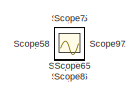
[diagram: root canvas - part 1/2, top left region]
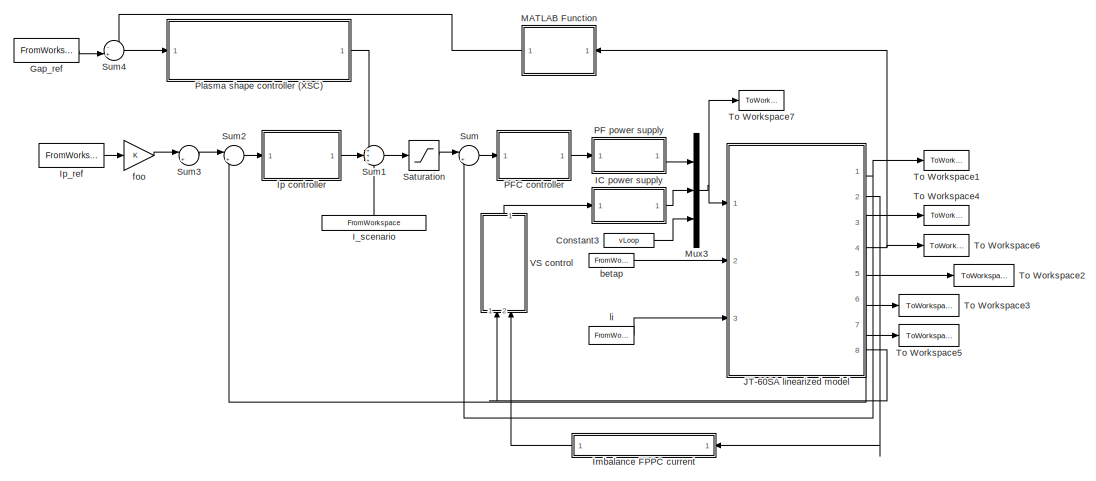
[diagram: root canvas - part 2/2, right side, full height]
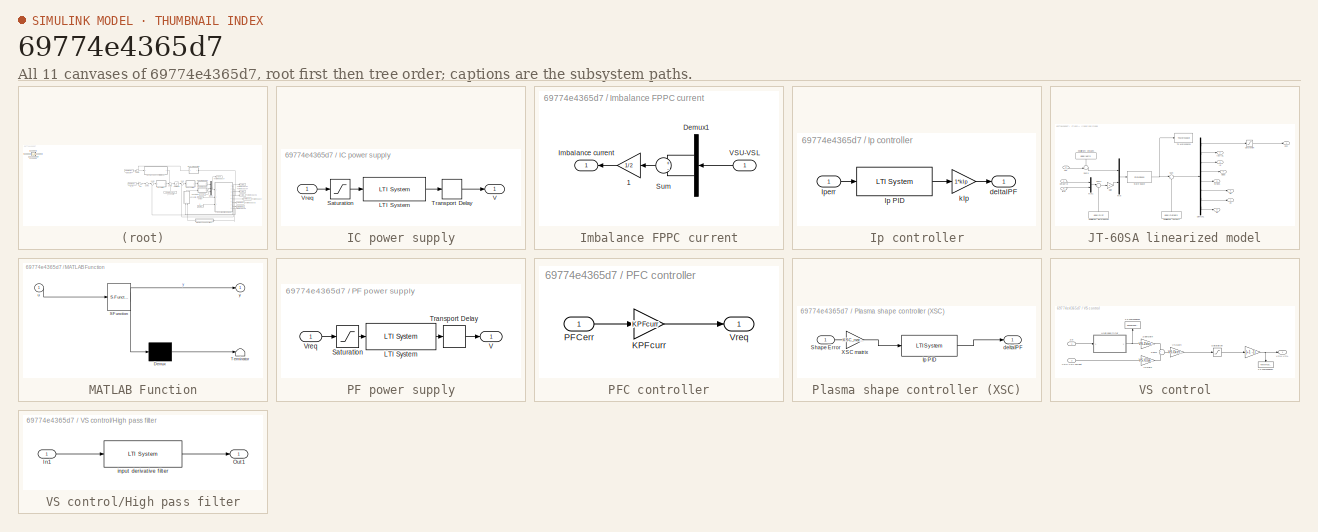
[diagram: thumbnail index - all 11 canvases of the model, root first then tree order]
MODEL slx_69774e4365d7
KIND model
CONFIG AbsTol = auto
CONFIG FixedStep = auto
CONFIG MaxStep = auto
CONFIG MinStep = auto
CONFIG RelTol = 1e-5
CONFIG SampleTimeConstraint = Unconstrained
CONFIG Solver = ode45
CONFIG SolverMode = SingleTasking
CONFIG SolverName = ode45
CONFIG StartTime = startTime-neg_time
CONFIG StopTime = stopTime
BLOCK [Constant] Constant3
  Value = vLoop
BLOCK [FromWorkspace] Gap_ref
  OutputAfterFinalValue = Holding final value
  SampleTime = 0
  VariableName = Gap_ref
  ZeroCross = on
BLOCK [SubSystem] IC power supply
  Ports = [1, 1]
  RequestExecContextInheritance = off
  Variant = off
BLOCK [Reference] IC power supply/LTI System  REF=cstblocks/LTI System
  Ports = [1, 1]
  SourceBlock = cstblocks/LTI System
  SourceType = LTI Block
BLOCK [Saturate] IC power supply/Saturation
  InputPortMap = u0
  LowerLimit = [-1e3 -1e3]
  Ports = [1, 1]
  UpperLimit = [1e3 1e3]
BLOCK [TransportDelay] IC power supply/Transport Delay
  DelayTime = PSdelay
  Ports = [1, 1]
BLOCK [Outport] IC power supply/V
  IconDisplay = Port number
BLOCK [Inport] IC power supply/Vreq
  IconDisplay = Port number
BLOCK [FromWorkspace] I_scenario
  OutputAfterFinalValue = Holding final value
  SampleTime = 0
  VariableName = IPF_scenario
  ZeroCross = on
BLOCK [SubSystem] Imbalance FPPC current
  Ports = [1, 1]
  RequestExecContextInheritance = off
  Variant = off
BLOCK [Gain] Imbalance FPPC current/    1
  Gain = 1/2
  OutDataTypeStr = Inherit: Inherit via internal rule
  ParamDataTypeStr = Inherit: Inherit via internal rule
  SaturateOnIntegerOverflow = off
BLOCK [Demux] Imbalance FPPC current/Demux1
  DisplayOption = bar
  Outputs = 2
  Ports = [1, 2]
BLOCK [Outport] Imbalance FPPC current/Imbalance current
  IconDisplay = Port number
BLOCK [Sum] Imbalance FPPC current/Sum
  IconShape = round
  InputSameDT = off
  Inputs = +|-
  OutDataTypeStr = Inherit: Inherit via internal rule
  Ports = [2, 1]
  SaturateOnIntegerOverflow = off
BLOCK [Inport] Imbalance FPPC current/VSU-VSL
  IconDisplay = Port number
BLOCK [SubSystem] Ip controller
  Ports = [1, 1]
  RequestExecContextInheritance = off
  Variant = off
BLOCK [Reference] Ip controller/Ip PID  REF=cstblocks/LTI System
  Ports = [1, 1]
  SourceBlock = cstblocks/LTI System
  SourceType = LTI Block
BLOCK [Inport] Ip controller/Iperr
  IconDisplay = Port number
BLOCK [Outport] Ip controller/deltaIPF
  IconDisplay = Port number
BLOCK [Gain] Ip controller/kIp
  Gain = 1*kIp
  Multiplication = Matrix(K*u)
  OutDataTypeStr = Inherit: Inherit via internal rule
  ParamDataTypeStr = Inherit: Inherit via internal rule
  SaturateOnIntegerOverflow = off
BLOCK [FromWorkspace] Ip_ref
  OutputAfterFinalValue = Holding final value
  SampleTime = 0
  VariableName = Ip_ref
  ZeroCross = on
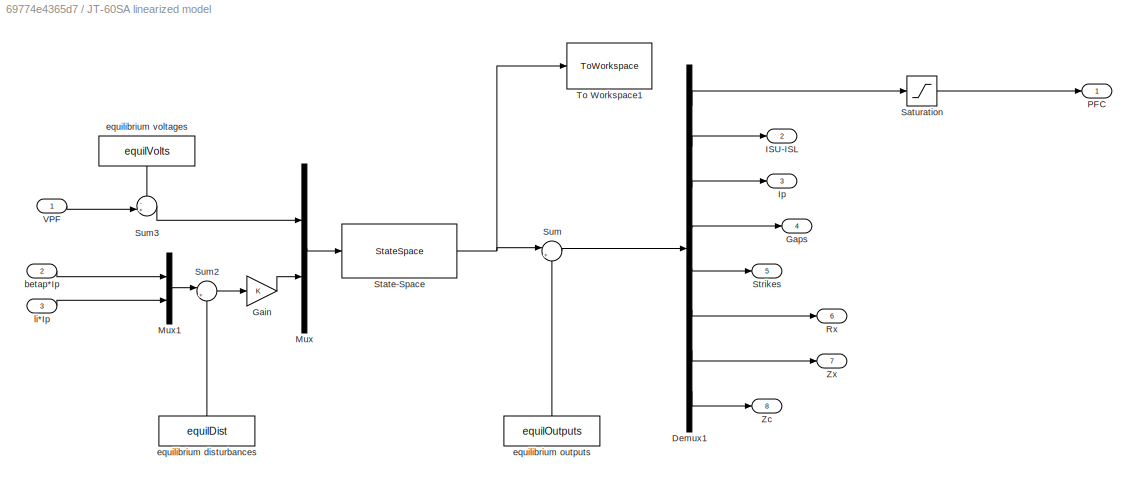
BLOCK [SubSystem] JT-60SA linearized model
  Ports = [3, 8]
  RequestExecContextInheritance = off
  Variant = off
BLOCK [Demux] JT-60SA linearized model/Demux1
  DisplayOption = bar
  Outputs = [10 2 1 nOfGaps nOfStrikes 1 1 1]
  Ports = [1, 8]
BLOCK [Gain] JT-60SA linearized model/Gain
  OutDataTypeStr = Inherit: Inherit via internal rule
  ParamDataTypeStr = Inherit: Inherit via internal rule
  SaturateOnIntegerOverflow = off
BLOCK [Outport] JT-60SA linearized model/Gaps
  IconDisplay = Port number
  Port = 4
BLOCK [Outport] JT-60SA linearized model/ISU-ISL
  IconDisplay = Port number
  Port = 2
BLOCK [Outport] JT-60SA linearized model/Ip
  IconDisplay = Port number
  Port = 3
BLOCK [Mux] JT-60SA linearized model/Mux
  DisplayOption = bar
  Inputs = 2
  Ports = [2, 1]
BLOCK [Mux] JT-60SA linearized model/Mux1
  DisplayOption = bar
  Inputs = 2
  Ports = [2, 1]
BLOCK [Outport] JT-60SA linearized model/PFC
  IconDisplay = Port number
BLOCK [Outport] JT-60SA linearized model/Rx
  IconDisplay = Port number
  Port = 6
BLOCK [Saturate] JT-60SA linearized model/Saturation
  InputPortMap = u0
  LowerLimit = I_sat_lower
  Ports = [1, 1]
  UpperLimit = I_sat_upper
BLOCK [StateSpace] JT-60SA linearized model/State-Space
  A = A_contr
  B = B_contr
  C = C_contr
  D = D_contr
  Ports = [1, 1]
  X0 = xi0
BLOCK [Outport] JT-60SA linearized model/Strikes
  IconDisplay = Port number
  Port = 5
BLOCK [Sum] JT-60SA linearized model/Sum
  IconShape = round
  InputSameDT = off
  Inputs = |++
  OutDataTypeStr = Inherit: Inherit via internal rule
  Ports = [2, 1]
  SaturateOnIntegerOverflow = off
BLOCK [Sum] JT-60SA linearized model/Sum2
  IconShape = round
  InputSameDT = off
  Inputs = |+-
  OutDataTypeStr = Inherit: Inherit via internal rule
  Ports = [2, 1]
  SaturateOnIntegerOverflow = off
BLOCK [Sum] JT-60SA linearized model/Sum3
  IconShape = round
  InputSameDT = off
  Inputs = -+|
  OutDataTypeStr = Inherit: Inherit via internal rule
  Ports = [2, 1]
  SaturateOnIntegerOverflow = off
BLOCK [ToWorkspace] JT-60SA linearized model/To Workspace1
  FixptAsFi = on
  MaxDataPoints = inf
  Ports = [1]
  SampleTime = -1
  Save2DSignal = 3-D array (concatenate along third dimension)
  SaveFormat = Structure With Time
  VariableName = deltaOutputs
BLOCK [Inport] JT-60SA linearized model/VPF
  IconDisplay = Port number
BLOCK [Outport] JT-60SA linearized model/Zc
  IconDisplay = Port number
  Port = 8
BLOCK [Outport] JT-60SA linearized model/Zx
  IconDisplay = Port number
  Port = 7
BLOCK [Inport] JT-60SA linearized model/betap*Ip
  IconDisplay = Port number
  Port = 2
BLOCK [Constant] JT-60SA linearized model/equilibrium disturbances
  Value = equilDist
BLOCK [Constant] JT-60SA linearized model/equilibrium outputs
  Value = equilOutputs
BLOCK [Constant] JT-60SA linearized model/equilibrium voltages
  Value = equilVolts
BLOCK [Inport] JT-60SA linearized model/li*Ip
  IconDisplay = Port number
  Port = 3
BLOCK [SubSystem] MATLAB Function
  ErrorFcn = Stateflow.Translate.translate
  PermitHierarchicalResolution = ExplicitOnly
  Ports = [1, 1]
  RequestExecContextInheritance = off
  SFBlockType = MATLAB Function
  TreatAsAtomicUnit = on
  Variant = off
BLOCK [Demux] MATLAB Function/ Demux 
  Outputs = 1
  Ports = [1, 1]
BLOCK [S-Function] MATLAB Function/ SFunction 
  EnableBusSupport = on
  FunctionName = sf_sfun
  PortCounts = [1 2]
  Ports = [1, 2]
  SFunctionDeploymentMode = off
  Tag = Stateflow S-Function JT_60SA_scheme_nov_2017_RU_2015a 2
BLOCK [Terminator] MATLAB Function/ Terminator 
BLOCK [Inport] MATLAB Function/u
  IconDisplay = Port number
BLOCK [Outport] MATLAB Function/y
  IconDisplay = Port number
BLOCK [Mux] Mux3
  DisplayOption = bar
  Inputs = 3
  Ports = [3, 1]
BLOCK [SubSystem] PF power supply
  Ports = [1, 1]
  RequestExecContextInheritance = off
  Variant = off
BLOCK [Reference] PF power supply/LTI System  REF=cstblocks/LTI System
  Ports = [1, 1]
  SourceBlock = cstblocks/LTI System
  SourceType = LTI Block
BLOCK [Saturate] PF power supply/Saturation
  InputPortMap = u0
  LowerLimit = -[CSsat EFsat]
  Ports = [1, 1]
  UpperLimit = [CSsat EFsat]
BLOCK [TransportDelay] PF power supply/Transport Delay
  DelayTime = PSdelay
  Ports = [1, 1]
BLOCK [Outport] PF power supply/V
  IconDisplay = Port number
BLOCK [Inport] PF power supply/Vreq
  IconDisplay = Port number
BLOCK [SubSystem] PFC controller
  Ports = [1, 1]
  RequestExecContextInheritance = off
  Variant = off
BLOCK [Gain] PFC controller/KPFcurr
  Gain = KPFcurr
  Multiplication = Matrix(K*u)
  OutDataTypeStr = Inherit: Inherit via internal rule
  ParamDataTypeStr = Inherit: Inherit via internal rule
  SaturateOnIntegerOverflow = off
BLOCK [Inport] PFC controller/PFCerr
  IconDisplay = Port number
BLOCK [Outport] PFC controller/Vreq
  IconDisplay = Port number
BLOCK [SubSystem] Plasma shape controller (XSC)
  Ports = [1, 1]
  RequestExecContextInheritance = off
  Variant = off
BLOCK [Reference] Plasma shape controller (XSC)/Ip PID  REF=cstblocks/LTI System
  Ports = [1, 1]
  SourceBlock = cstblocks/LTI System
  SourceType = LTI Block
BLOCK [Inport] Plasma shape controller (XSC)/Shape Error
  IconDisplay = Port number
BLOCK [Gain] Plasma shape controller (XSC)/XSC matrix
  Gain = XSC_matrix
  Multiplication = Matrix(K*u)
  OutDataTypeStr = Inherit: Inherit via internal rule
  ParamDataTypeStr = Inherit: Inherit via internal rule
  SaturateOnIntegerOverflow = off
BLOCK [Outport] Plasma shape controller (XSC)/deltaIPF
  IconDisplay = Port number
BLOCK [Saturate] Saturation
  InputPortMap = u0
  LowerLimit = I_sat_lower
  Ports = [1, 1]
  UpperLimit = I_sat_upper
BLOCK [Scope] Scope
  IOType = viewer
  Ports = []
  ScopeSpecificationString = C++SS(StrPVP('Location','[10, 60, 1926, 1050]'),StrPVP('Open','off'),MxPVP('AxesTitles',24,'struct(''axes1'',''%<SignalLabel>'')'),MxPVP('ScopeGraphics',28,'struct(''FigureColor'',''[0.156862745098039 0.156862745098039 0.156862745098039]'',''AxesColor'',''[0 0 0]'',''AxesTickColor'',''[0.686274509803922 0.686274509803922 0.686274509803922]'',''LineColors'',''[1 1 0;1 0 1;0 1 1;1 0 0;0 1 0;0 0 1]''...<+322ch>
BLOCK [Scope] Scope1
  IOType = viewer
  Ports = []
  ScopeSpecificationString = C++SS(StrPVP('Location','[188, 365, 512, 604]'),StrPVP('Open','off'),MxPVP('AxesTitles',24,'struct(''axes1'',''%<SignalLabel>'')'),MxPVP('ScopeGraphics',28,'struct(''FigureColor'',''[0.156862745098039 0.156862745098039 0.156862745098039]'',''AxesColor'',''[0 0 0]'',''AxesTickColor'',''[0.686274509803922 0.686274509803922 0.686274509803922]'',''LineColors'',''[1 1 0;1 0 1;0 1 1;1 0 0;0 1 0;0 0 1]''...<+384ch>
BLOCK [Scope] Scope10
  IOType = viewer
  Ports = []
  ScopeSpecificationString = C++SS(StrPVP('Location','[11, 90, 1373, 804]'),StrPVP('Open','off'),MxPVP('AxesTitles',24,'struct(''axes1'',''%<SignalLabel>'')'),MxPVP('ScopeGraphics',28,'struct(''FigureColor'',''[0.156862745098039 0.156862745098039 0.156862745098039]'',''AxesColor'',''[0 0 0]'',''AxesTickColor'',''[0.686274509803922 0.686274509803922 0.686274509803922]'',''LineColors'',''[1 1 0;1 0 1;0 1 1;1 0 0;0 1 0;0 0 1]'',...<+373ch>
BLOCK [Scope] Scope11
  IOType = viewer
  Ports = []
  ScopeSpecificationString = C++SS(StrPVP('Location','[188, 365, 512, 604]'),StrPVP('Open','off'),MxPVP('AxesTitles',24,'struct(''axes1'',''%<SignalLabel>'')'),MxPVP('ScopeGraphics',28,'struct(''FigureColor'',''[0.156862745098039 0.156862745098039 0.156862745098039]'',''AxesColor'',''[0 0 0]'',''AxesTickColor'',''[0.686274509803922 0.686274509803922 0.686274509803922]'',''LineColors'',''[1 1 0;1 0 1;0 1 1;1 0 0;0 1 0;0 0 1]''...<+386ch>
BLOCK [Scope] Scope12
  IOType = viewer
  Ports = []
  ScopeSpecificationString = C++SS(StrPVP('Location','[188, 365, 512, 604]'),StrPVP('Open','off'),MxPVP('AxesTitles',24,'struct(''axes1'',''%<SignalLabel>'')'),MxPVP('ScopeGraphics',28,'struct(''FigureColor'',''[0.156862745098039 0.156862745098039 0.156862745098039]'',''AxesColor'',''[0 0 0]'',''AxesTickColor'',''[0.686274509803922 0.686274509803922 0.686274509803922]'',''LineColors'',''[1 1 0;1 0 1;0 1 1;1 0 0;0 1 0;0 0 1]''...<+340ch>  <repeated x4 — deduplicated; at blocks: Scope12, Scope13, Scope7, Scope9>
BLOCK [Scope] Scope13
  IOType = viewer
  Ports = []
BLOCK [Scope] Scope14
  IOType = viewer
  Ports = []
  ScopeSpecificationString = C++SS(StrPVP('Location','[188, 365, 512, 604]'),StrPVP('Open','off'),MxPVP('AxesTitles',24,'struct(''axes1'',''%<SignalLabel>'')'),MxPVP('ScopeGraphics',28,'struct(''FigureColor'',''[0.156862745098039 0.156862745098039 0.156862745098039]'',''AxesColor'',''[0 0 0]'',''AxesTickColor'',''[0.686274509803922 0.686274509803922 0.686274509803922]'',''LineColors'',''[1 1 0;1 0 1;0 1 1;1 0 0;0 1 0;0 0 1]''...<+373ch>
BLOCK [Scope] Scope15
  IOType = viewer
  Ports = []
  ScopeSpecificationString = C++SS(StrPVP('Location','[188, 365, 512, 604]'),StrPVP('Open','off'),MxPVP('AxesTitles',24,'struct(''axes1'',''%<SignalLabel>'')'),MxPVP('ScopeGraphics',28,'struct(''FigureColor'',''[0.156862745098039 0.156862745098039 0.156862745098039]'',''AxesColor'',''[0 0 0]'',''AxesTickColor'',''[0.686274509803922 0.686274509803922 0.686274509803922]'',''LineColors'',''[1 1 0;1 0 1;0 1 1;1 0 0;0 1 0;0 0 1]''...<+341ch>  <repeated x3 — deduplicated; at blocks: Scope15, Scope16, Scope29>
BLOCK [Scope] Scope16
  IOType = viewer
  Ports = []
BLOCK [Scope] Scope17
  IOType = viewer
  Ports = []
  ScopeSpecificationString = C++SS(StrPVP('Location','[188, 365, 512, 604]'),StrPVP('Open','off'),MxPVP('AxesTitles',24,'struct(''axes1'',''%<SignalLabel>'')'),MxPVP('ScopeGraphics',28,'struct(''FigureColor'',''[0.156862745098039 0.156862745098039 0.156862745098039]'',''AxesColor'',''[0 0 0]'',''AxesTickColor'',''[0.686274509803922 0.686274509803922 0.686274509803922]'',''LineColors'',''[1 1 0;1 0 1;0 1 1;1 0 0;0 1 0;0 0 1]''...<+373ch>
BLOCK [Scope] Scope18
  IOType = viewer
  Ports = []
  ScopeSpecificationString = C++SS(StrPVP('Location','[188, 365, 512, 604]'),StrPVP('Open','off'),MxPVP('AxesTitles',24,'struct(''axes1'',''%<SignalLabel>'')'),MxPVP('ScopeGraphics',28,'struct(''FigureColor'',''[0.156862745098039 0.156862745098039 0.156862745098039]'',''AxesColor'',''[0 0 0]'',''AxesTickColor'',''[0.686274509803922 0.686274509803922 0.686274509803922]'',''LineColors'',''[1 1 0;1 0 1;0 1 1;1 0 0;0 1 0;0 0 1]''...<+345ch>
BLOCK [Scope] Scope19
  IOType = viewer
  Ports = []
  ScopeSpecificationString = C++SS(StrPVP('Location','[188, 365, 512, 604]'),StrPVP('Open','off'),MxPVP('AxesTitles',24,'struct(''axes1'',''%<SignalLabel>'')'),MxPVP('ScopeGraphics',28,'struct(''FigureColor'',''[0.156862745098039 0.156862745098039 0.156862745098039]'',''AxesColor'',''[0 0 0]'',''AxesTickColor'',''[0.686274509803922 0.686274509803922 0.686274509803922]'',''LineColors'',''[1 1 0;1 0 1;0 1 1;1 0 0;0 1 0;0 0 1]''...<+377ch>
BLOCK [Scope] Scope2
  IOType = viewer
  Ports = []
  ScopeSpecificationString = Simulink.scopes.TimeScopeBlockCfg('CurrentConfiguration', extmgr.ConfigurationSet(extmgr.Configuration('Core','General UI',true),extmgr.Configuration('Core','Source UI',true),extmgr.Configuration('Sources','WiredSimulink',true,'DataLoggingVariableName','ScopeData2','DataLoggingSaveFormat','StructureWithTime','DataLoggingDecimation','1','DataLoggingDecimateData',true),extmgr.Configuration('Visuals'...<+2026ch>
BLOCK [Scope] Scope20
  IOType = viewer
  Ports = []
  ScopeSpecificationString = C++SS(StrPVP('Location','[11, 60, 1377, 738]'),StrPVP('Open','off'),MxPVP('AxesTitles',24,'struct(''axes1'',''%<SignalLabel>'')'),MxPVP('ScopeGraphics',28,'struct(''FigureColor'',''[0.156862745098039 0.156862745098039 0.156862745098039]'',''AxesColor'',''[0 0 0]'',''AxesTickColor'',''[0.686274509803922 0.686274509803922 0.686274509803922]'',''LineColors'',''[1 1 0;1 0 1;0 1 1;1 0 0;0 1 0;0 0 1]'',...<+342ch>
BLOCK [Scope] Scope21
  IOType = viewer
  Ports = []
  ScopeSpecificationString = C++SS(StrPVP('Location','[188, 365, 512, 604]'),StrPVP('Open','off'),MxPVP('AxesTitles',24,'struct(''axes1'',''%<SignalLabel>'')'),MxPVP('ScopeGraphics',28,'struct(''FigureColor'',''[0.156862745098039 0.156862745098039 0.156862745098039]'',''AxesColor'',''[0 0 0]'',''AxesTickColor'',''[0.686274509803922 0.686274509803922 0.686274509803922]'',''LineColors'',''[1 1 0;1 0 1;0 1 1;1 0 0;0 1 0;0 0 1]''...<+344ch>
BLOCK [Scope] Scope22
  IOType = viewer
  Ports = []
  ScopeSpecificationString = C++SS(StrPVP('Location','[188, 365, 512, 604]'),StrPVP('Open','off'),MxPVP('AxesTitles',24,'struct(''axes1'',''%<SignalLabel>'')'),MxPVP('ScopeGraphics',28,'struct(''FigureColor'',''[0.156862745098039 0.156862745098039 0.156862745098039]'',''AxesColor'',''[0 0 0]'',''AxesTickColor'',''[0.686274509803922 0.686274509803922 0.686274509803922]'',''LineColors'',''[1 1 0;1 0 1;0 1 1;1 0 0;0 1 0;0 0 1]''...<+351ch>
BLOCK [Scope] Scope23
  IOType = viewer
  Ports = []
  ScopeSpecificationString = C++SS(StrPVP('Location','[188, 365, 512, 604]'),StrPVP('Open','off'),MxPVP('AxesTitles',24,'struct(''axes1'',''%<SignalLabel>'')'),MxPVP('ScopeGraphics',28,'struct(''FigureColor'',''[0.156862745098039 0.156862745098039 0.156862745098039]'',''AxesColor'',''[0 0 0]'',''AxesTickColor'',''[0.686274509803922 0.686274509803922 0.686274509803922]'',''LineColors'',''[1 1 0;1 0 1;0 1 1;1 0 0;0 1 0;0 0 1]''...<+344ch>
BLOCK [Scope] Scope24
  IOType = viewer
  Ports = []
  ScopeSpecificationString = C++SS(StrPVP('Location','[188, 365, 512, 604]'),StrPVP('Open','off'),MxPVP('AxesTitles',24,'struct(''axes1'',''%<SignalLabel>'')'),MxPVP('ScopeGraphics',28,'struct(''FigureColor'',''[0.156862745098039 0.156862745098039 0.156862745098039]'',''AxesColor'',''[0 0 0]'',''AxesTickColor'',''[0.686274509803922 0.686274509803922 0.686274509803922]'',''LineColors'',''[1 1 0;1 0 1;0 1 1;1 0 0;0 1 0;0 0 1]''...<+351ch>
BLOCK [Scope] Scope25
  IOType = viewer
  Ports = []
  ScopeSpecificationString = C++SS(StrPVP('Location','[381, 316, 705, 1030]'),StrPVP('Open','off'),MxPVP('AxesTitles',24,'struct(''axes1'',''%<SignalLabel>'')'),MxPVP('ScopeGraphics',28,'struct(''FigureColor'',''[0.156862745098039 0.156862745098039 0.156862745098039]'',''AxesColor'',''[0 0 0]'',''AxesTickColor'',''[0.686274509803922 0.686274509803922 0.686274509803922]'',''LineColors'',''[1 1 0;1 0 1;0 1 1;1 0 0;0 1 0;0 0 1]'...<+347ch>
BLOCK [Scope] Scope26
  IOType = viewer
  Ports = []
  ScopeSpecificationString = C++SS(StrPVP('Location','[188, 365, 512, 604]'),StrPVP('Open','off'),MxPVP('AxesTitles',24,'struct(''axes1'',''%<SignalLabel>'')'),MxPVP('ScopeGraphics',28,'struct(''FigureColor'',''[0.156862745098039 0.156862745098039 0.156862745098039]'',''AxesColor'',''[0 0 0]'',''AxesTickColor'',''[0.686274509803922 0.686274509803922 0.686274509803922]'',''LineColors'',''[1 1 0;1 0 1;0 1 1;1 0 0;0 1 0;0 0 1]''...<+359ch>
BLOCK [Scope] Scope27
  IOType = viewer
  Ports = []
  ScopeSpecificationString = C++SS(StrPVP('Location','[188, 365, 512, 604]'),StrPVP('Open','off'),MxPVP('AxesTitles',24,'struct(''axes1'',''%<SignalLabel>'')'),MxPVP('ScopeGraphics',28,'struct(''FigureColor'',''[0.156862745098039 0.156862745098039 0.156862745098039]'',''AxesColor'',''[0 0 0]'',''AxesTickColor'',''[0.686274509803922 0.686274509803922 0.686274509803922]'',''LineColors'',''[1 1 0;1 0 1;0 1 1;1 0 0;0 1 0;0 0 1]''...<+357ch>
BLOCK [Scope] Scope28
  IOType = viewer
  Ports = []
  ScopeSpecificationString = C++SS(StrPVP('Location','[188, 365, 512, 604]'),StrPVP('Open','off'),MxPVP('AxesTitles',24,'struct(''axes1'',''%<SignalLabel>'')'),MxPVP('ScopeGraphics',28,'struct(''FigureColor'',''[0.156862745098039 0.156862745098039 0.156862745098039]'',''AxesColor'',''[0 0 0]'',''AxesTickColor'',''[0.686274509803922 0.686274509803922 0.686274509803922]'',''LineColors'',''[1 1 0;1 0 1;0 1 1;1 0 0;0 1 0;0 0 1]''...<+359ch>
BLOCK [Scope] Scope29
  IOType = viewer
  Ports = []
BLOCK [Scope] Scope3
  IOType = viewer
  Ports = []
  ScopeSpecificationString = C++SS(StrPVP('Location','[11, 60, 1373, 738]'),StrPVP('Open','off'),MxPVP('AxesTitles',24,'struct(''axes1'',''%<SignalLabel>'')'),MxPVP('ScopeGraphics',28,'struct(''FigureColor'',''[0.156862745098039 0.156862745098039 0.156862745098039]'',''AxesColor'',''[0 0 0]'',''AxesTickColor'',''[0.686274509803922 0.686274509803922 0.686274509803922]'',''LineColors'',''[1 1 0;1 0 1;0 1 1;1 0 0;0 1 0;0 0 1]'',...<+341ch>
BLOCK [Scope] Scope30
  IOType = viewer
  Ports = []
  ScopeSpecificationString = C++SS(StrPVP('Location','[188, 365, 512, 604]'),StrPVP('Open','off'),MxPVP('AxesTitles',24,'struct(''axes1'',''%<SignalLabel>'')'),MxPVP('ScopeGraphics',28,'struct(''FigureColor'',''[0.156862745098039 0.156862745098039 0.156862745098039]'',''AxesColor'',''[0 0 0]'',''AxesTickColor'',''[0.686274509803922 0.686274509803922 0.686274509803922]'',''LineColors'',''[1 1 0;1 0 1;0 1 1;1 0 0;0 1 0;0 0 1]''...<+347ch>
BLOCK [Scope] Scope31
  IOType = viewer
  Ports = []
  ScopeSpecificationString = C++SS(StrPVP('Location','[188, 365, 512, 604]'),StrPVP('Open','off'),MxPVP('AxesTitles',24,'struct(''axes1'',''%<SignalLabel>'')'),MxPVP('ScopeGraphics',28,'struct(''FigureColor'',''[0.156862745098039 0.156862745098039 0.156862745098039]'',''AxesColor'',''[0 0 0]'',''AxesTickColor'',''[0.686274509803922 0.686274509803922 0.686274509803922]'',''LineColors'',''[1 1 0;1 0 1;0 1 1;1 0 0;0 1 0;0 0 1]''...<+347ch>
BLOCK [Scope] Scope32
  IOType = viewer
  Ports = []
  ScopeSpecificationString = C++SS(StrPVP('Location','[188, 365, 512, 604]'),StrPVP('Open','off'),MxPVP('AxesTitles',24,'struct(''axes1'',''%<SignalLabel>'')'),MxPVP('ScopeGraphics',28,'struct(''FigureColor'',''[0.156862745098039 0.156862745098039 0.156862745098039]'',''AxesColor'',''[0 0 0]'',''AxesTickColor'',''[0.686274509803922 0.686274509803922 0.686274509803922]'',''LineColors'',''[1 1 0;1 0 1;0 1 1;1 0 0;0 1 0;0 0 1]''...<+350ch>
BLOCK [Scope] Scope33
  IOType = viewer
  Ports = []
  ScopeSpecificationString = C++SS(StrPVP('Location','[188, 365, 512, 604]'),StrPVP('Open','off'),MxPVP('AxesTitles',24,'struct(''axes1'',''%<SignalLabel>'')'),MxPVP('ScopeGraphics',28,'struct(''FigureColor'',''[0.156862745098039 0.156862745098039 0.156862745098039]'',''AxesColor'',''[0 0 0]'',''AxesTickColor'',''[0.686274509803922 0.686274509803922 0.686274509803922]'',''LineColors'',''[1 1 0;1 0 1;0 1 1;1 0 0;0 1 0;0 0 1]''...<+345ch>
BLOCK [Scope] Scope34
  IOType = viewer
  Ports = []
  ScopeSpecificationString = C++SS(StrPVP('Location','[188, 365, 512, 604]'),StrPVP('Open','off'),MxPVP('AxesTitles',24,'struct(''axes1'',''%<SignalLabel>'')'),MxPVP('ScopeGraphics',28,'struct(''FigureColor'',''[0.156862745098039 0.156862745098039 0.156862745098039]'',''AxesColor'',''[0 0 0]'',''AxesTickColor'',''[0.686274509803922 0.686274509803922 0.686274509803922]'',''LineColors'',''[1 1 0;1 0 1;0 1 1;1 0 0;0 1 0;0 0 1]''...<+356ch>
BLOCK [Scope] Scope35
  IOType = viewer
  Ports = []
  ScopeSpecificationString = C++SS(StrPVP('Location','[188, 365, 512, 604]'),StrPVP('Open','off'),MxPVP('AxesTitles',24,'struct(''axes1'',''%<SignalLabel>'')'),MxPVP('ScopeGraphics',28,'struct(''FigureColor'',''[0.156862745098039 0.156862745098039 0.156862745098039]'',''AxesColor'',''[0 0 0]'',''AxesTickColor'',''[0.686274509803922 0.686274509803922 0.686274509803922]'',''LineColors'',''[1 1 0;1 0 1;0 1 1;1 0 0;0 1 0;0 0 1]''...<+355ch>
BLOCK [Scope] Scope36
  IOType = viewer
  Ports = []
  ScopeSpecificationString = Simulink.scopes.TimeScopeBlockCfg('CurrentConfiguration', extmgr.ConfigurationSet(extmgr.Configuration('Core','General UI',true),extmgr.Configuration('Core','Source UI',true),extmgr.Configuration('Sources','WiredSimulink',true,'DataLoggingVariableName','ScopeData36','DataLoggingSaveFormat','StructureWithTime','DataLoggingDecimation','1','DataLoggingDecimateData',true),extmgr.Configuration('Visuals...<+1776ch>
BLOCK [Scope] Scope37
  IOType = viewer
  Ports = []
  ScopeSpecificationString = Simulink.scopes.TimeScopeBlockCfg('CurrentConfiguration', extmgr.ConfigurationSet(extmgr.Configuration('Core','General UI',true,'FigureColor',[0.156862745098039 0.156862745098039 0.156862745098039]),extmgr.Configuration('Core','Source UI',true),extmgr.Configuration('Sources','WiredSimulink',true,'DataLoggingVariableName','ScopeData37','DataLoggingSaveFormat','StructureWithTime','DataLoggingDecimat...<+2856ch>
BLOCK [Scope] Scope38
  IOType = viewer
  Ports = []
  ScopeSpecificationString = C++SS(StrPVP('Location','[376, 294, 700, 533]'),StrPVP('Open','off'),MxPVP('AxesTitles',24,'struct(''axes1'',''%<SignalLabel>'')'),MxPVP('ScopeGraphics',28,'struct(''FigureColor'',''[0.5 0.5 0.5]'',''AxesColor'',''[0 0 0]'',''AxesTickColor'',''[1 1 1]'',''LineColors'',''[1 1 0;1 0 1;0 1 1;1 0 0;0 1 0;0 0 1]'',''LineStyles'',''-|-|-|-|-|-'',''LineWidths'',''[0.5 0.5 0.5 0.5 0.5 0.5]'',''MarkerStyle...<+244ch>  <repeated x3 — deduplicated; at blocks: Scope38, Scope46, Scope47>
BLOCK [Scope] Scope39
  IOType = viewer
  Ports = []
  ScopeSpecificationString = C++SS(StrPVP('Location','[1, 49, 1921, 1049]'),StrPVP('Open','off'),MxPVP('AxesTitles',24,'struct(''axes1'',''%<SignalLabel>'')'),MxPVP('ScopeGraphics',28,'struct(''FigureColor'',''[0.5 0.5 0.5]'',''AxesColor'',''[0 0 0]'',''AxesTickColor'',''[1 1 1]'',''LineColors'',''[1 1 0;1 0 1;0 1 1;1 0 0;0 1 0;0 0 1]'',''LineStyles'',''-|-|-|-|-|-'',''LineWidths'',''[0.5 0.5 0.5 0.5 0.5 0.5]'',''MarkerStyles...<+292ch>
BLOCK [Scope] Scope4
  IOType = viewer
  Ports = []
  ScopeSpecificationString = C++SS(StrPVP('Location','[79, 60, 714, 747]'),StrPVP('Open','off'),MxPVP('AxesTitles',24,'struct(''axes1'',''%<SignalLabel>'')'),MxPVP('ScopeGraphics',28,'struct(''FigureColor'',''[0.156862745098039 0.156862745098039 0.156862745098039]'',''AxesColor'',''[0 0 0]'',''AxesTickColor'',''[0.686274509803922 0.686274509803922 0.686274509803922]'',''LineColors'',''[1 1 0;1 0 1;0 1 1;1 0 0;0 1 0;0 0 1]'','...<+348ch>
BLOCK [Scope] Scope40
  IOType = viewer
  Ports = []
  ScopeSpecificationString = Simulink.scopes.TimeScopeBlockCfg('CurrentConfiguration', extmgr.ConfigurationSet(extmgr.Configuration('Core','General UI',true),extmgr.Configuration('Core','Source UI',true),extmgr.Configuration('Sources','WiredSimulink',true,'DataLoggingVariableName','ScopeData40','DataLoggingSaveFormat','StructureWithTime','DataLoggingDecimation','1','DataLoggingDecimateData',true),extmgr.Configuration('Visuals...<+1771ch>
BLOCK [Scope] Scope41
  IOType = viewer
  Ports = []
  ScopeSpecificationString = Simulink.scopes.TimeScopeBlockCfg('CurrentConfiguration', extmgr.ConfigurationSet(extmgr.Configuration('Core','General UI',true),extmgr.Configuration('Core','Source UI',true),extmgr.Configuration('Sources','WiredSimulink',true,'DataLoggingVariableName','ScopeData41','DataLoggingSaveFormat','StructureWithTime','DataLoggingDecimation','1','DataLoggingDecimateData',true),extmgr.Configuration('Visuals...<+1943ch>
BLOCK [Scope] Scope42
  IOType = viewer
  Ports = []
  ScopeSpecificationString = Simulink.scopes.TimeScopeBlockCfg('CurrentConfiguration', extmgr.ConfigurationSet(extmgr.Configuration('Core','General UI',true),extmgr.Configuration('Core','Source UI',true),extmgr.Configuration('Sources','WiredSimulink',true,'DataLoggingVariableName','ScopeData42','DataLoggingSaveFormat','StructureWithTime','DataLoggingDecimation','1','DataLoggingDecimateData',true),extmgr.Configuration('Visuals...<+1774ch>
BLOCK [Scope] Scope43
  IOType = viewer
  Ports = []
  ScopeSpecificationString = C++SS(StrPVP('Location','[1, 49, 1921, 1049]'),StrPVP('Open','off'),MxPVP('AxesTitles',24,'struct(''axes1'',''%<SignalLabel>'')'),MxPVP('ScopeGraphics',28,'struct(''FigureColor'',''[0.5 0.5 0.5]'',''AxesColor'',''[0 0 0]'',''AxesTickColor'',''[1 1 1]'',''LineColors'',''[1 1 0;1 0 1;0 1 1;1 0 0;0 1 0;0 0 1]'',''LineStyles'',''-|-|-|-|-|-'',''LineWidths'',''[0.5 0.5 0.5 0.5 0.5 0.5]'',''MarkerStyles...<+244ch>
BLOCK [Scope] Scope44
  IOType = viewer
  Ports = []
  ScopeSpecificationString = C++SS(StrPVP('Location','[1, 49, 1921, 1049]'),StrPVP('Open','off'),MxPVP('AxesTitles',24,'struct(''axes1'',''%<SignalLabel>'')'),MxPVP('ScopeGraphics',28,'struct(''FigureColor'',''[0.5 0.5 0.5]'',''AxesColor'',''[0 0 0]'',''AxesTickColor'',''[1 1 1]'',''LineColors'',''[1 1 0;1 0 1;0 1 1;1 0 0;0 1 0;0 0 1]'',''LineStyles'',''-|-|-|-|-|-'',''LineWidths'',''[0.5 0.5 0.5 0.5 0.5 0.5]'',''MarkerStyles...<+244ch>
BLOCK [Scope] Scope45
  IOType = viewer
  Ports = []
  ScopeSpecificationString = Simulink.scopes.TimeScopeBlockCfg('CurrentConfiguration', extmgr.ConfigurationSet(extmgr.Configuration('Core','General UI',true),extmgr.Configuration('Core','Source UI',true),extmgr.Configuration('Sources','WiredSimulink',true,'DataLoggingVariableName','ScopeData45','DataLoggingSaveFormat','StructureWithTime','DataLoggingDecimation','1','DataLoggingDecimateData',true),extmgr.Configuration('Visuals...<+1703ch>
BLOCK [Scope] Scope46
  IOType = viewer
  Ports = []
BLOCK [Scope] Scope47
  IOType = viewer
  Ports = []
BLOCK [Scope] Scope48
  IOType = viewer
  Ports = []
  ScopeSpecificationString = Simulink.scopes.TimeScopeBlockCfg('CurrentConfiguration', extmgr.ConfigurationSet(extmgr.Configuration('Core','General UI',true),extmgr.Configuration('Core','Source UI',true),extmgr.Configuration('Sources','WiredSimulink',true,'DataLoggingVariableName','ScopeData48','DataLoggingSaveFormat','StructureWithTime','DataLoggingDecimation','1','DataLoggingDecimateData',true),extmgr.Configuration('Visuals...<+1856ch>
BLOCK [Scope] Scope49
  IOType = viewer
  Ports = []
  ScopeSpecificationString = Simulink.scopes.TimeScopeBlockCfg('CurrentConfiguration', extmgr.ConfigurationSet(extmgr.Configuration('Core','General UI',true),extmgr.Configuration('Core','Source UI',true),extmgr.Configuration('Sources','WiredSimulink',true,'DataLoggingVariableName','ScopeData49','DataLoggingSaveFormat','StructureWithTime','DataLoggingDecimation','1','DataLoggingDecimateData',true),extmgr.Configuration('Visuals...<+2038ch>
BLOCK [Scope] Scope5
  IOType = viewer
  Ports = []
  ScopeSpecificationString = C++SS(StrPVP('Location','[188, 365, 512, 604]'),StrPVP('Open','off'),MxPVP('AxesTitles',24,'struct(''axes1'',''%<SignalLabel>'')'),MxPVP('ScopeGraphics',28,'struct(''FigureColor'',''[0.156862745098039 0.156862745098039 0.156862745098039]'',''AxesColor'',''[0 0 0]'',''AxesTickColor'',''[0.686274509803922 0.686274509803922 0.686274509803922]'',''LineColors'',''[1 1 0;1 0 1;0 1 1;1 0 0;0 1 0;0 0 1]''...<+343ch>
BLOCK [Scope] Scope50
  IOType = viewer
  Ports = []
  ScopeSpecificationString = C++SS(StrPVP('Location','[10, 60, 1926, 1060]'),StrPVP('Open','off'),MxPVP('AxesTitles',24,'struct(''axes1'',''%<SignalLabel>'')'),MxPVP('ScopeGraphics',28,'struct(''FigureColor'',''[0.5 0.5 0.5]'',''AxesColor'',''[0 0 0]'',''AxesTickColor'',''[1 1 1]'',''LineColors'',''[1 1 0;1 0 1;0 1 1;1 0 0;0 1 0;0 0 1]'',''LineStyles'',''-|-|-|-|-|-'',''LineWidths'',''[0.5 0.5 0.5 0.5 0.5 0.5]'',''MarkerStyle...<+245ch>
BLOCK [Scope] Scope51
  IOType = viewer
  Ports = []
  ScopeSpecificationString = Simulink.scopes.TimeScopeBlockCfg('CurrentConfiguration', extmgr.ConfigurationSet(extmgr.Configuration('Core','General UI',true),extmgr.Configuration('Core','Source UI',true),extmgr.Configuration('Sources','WiredSimulink',true,'DataLoggingVariableName','ScopeData51','DataLoggingSaveFormat','StructureWithTime','DataLoggingDecimation','1','DataLoggingDecimateData',true),extmgr.Configuration('Visuals...<+1745ch>
BLOCK [Scope] Scope52
  IOType = viewer
  Ports = []
  ScopeSpecificationString = Simulink.scopes.TimeScopeBlockCfg('CurrentConfiguration', extmgr.ConfigurationSet(extmgr.Configuration('Core','General UI',true),extmgr.Configuration('Core','Source UI',true),extmgr.Configuration('Sources','WiredSimulink',true,'DataLoggingVariableName','ScopeData52','DataLoggingSaveFormat','StructureWithTime','DataLoggingDecimation','1','DataLoggingDecimateData',true),extmgr.Configuration('Visuals...<+1697ch>
BLOCK [Scope] Scope53
  IOType = viewer
  Ports = []
  ScopeSpecificationString = Simulink.scopes.TimeScopeBlockCfg('CurrentConfiguration', extmgr.ConfigurationSet(extmgr.Configuration('Core','General UI',true),extmgr.Configuration('Core','Source UI',true),extmgr.Configuration('Sources','WiredSimulink',true,'DataLoggingVariableName','ScopeData1'),extmgr.Configuration('Visuals','Time Domain',true,'SerializedDisplays',{struct('MinYLimReal','-0.00951','MaxYLimReal','0.62653','YLab...<+1482ch>
BLOCK [Scope] Scope54
  IOType = viewer
  Ports = []
  ScopeSpecificationString = Simulink.scopes.TimeScopeBlockCfg('CurrentConfiguration', extmgr.ConfigurationSet(extmgr.Configuration('Core','General UI',true),extmgr.Configuration('Core','Source UI',true),extmgr.Configuration('Sources','WiredSimulink',true,'DataLoggingVariableName','ScopeData1'),extmgr.Configuration('Visuals','Time Domain',true,'SerializedDisplays',{struct('MinYLimReal','-0.08782','MaxYLimReal','0.06104','YLab...<+1533ch>
BLOCK [Scope] Scope55
  IOType = viewer
  Ports = []
  ScopeSpecificationString = Simulink.scopes.TimeScopeBlockCfg('CurrentConfiguration', extmgr.ConfigurationSet(extmgr.Configuration('Core','General UI',true),extmgr.Configuration('Core','Source UI',true),extmgr.Configuration('Sources','WiredSimulink',true,'DataLoggingVariableName','ScopeData1'),extmgr.Configuration('Visuals','Time Domain',true,'SerializedDisplays',{struct('MinYLimReal','-0.05221','MaxYLimReal','0.81949','YLab...<+4141ch>
BLOCK [Scope] Scope56
  IOType = viewer
  Ports = []
  ScopeSpecificationString = Simulink.scopes.TimeScopeBlockCfg('CurrentConfiguration', extmgr.ConfigurationSet(extmgr.Configuration('Core','General UI',true),extmgr.Configuration('Core','Source UI',true),extmgr.Configuration('Sources','WiredSimulink',true,'DataLoggingVariableName','ScopeData2'),extmgr.Configuration('Visuals','Time Domain',true,'SerializedDisplays',{struct('MinYLimReal','4500000.00000','MaxYLimReal','6500000.0...<+1436ch>
BLOCK [Scope] Scope57
  IOType = viewer
  Ports = []
  ScopeSpecificationString = Simulink.scopes.TimeScopeBlockCfg('CurrentConfiguration', extmgr.ConfigurationSet(extmgr.Configuration('Core','General UI',true),extmgr.Configuration('Core','Source UI',true),extmgr.Configuration('Sources','WiredSimulink',true,'DataLoggingVariableName','ScopeData1'),extmgr.Configuration('Visuals','Time Domain',true,'SerializedDisplays',{struct('MinYLimReal','-20938.25','MaxYLimReal','13964.25','YL...<+1545ch>
BLOCK [Scope] Scope58
  IOType = viewer
  Ports = []
  ScopeSpecificationString = Simulink.scopes.TimeScopeBlockCfg('CurrentConfiguration', extmgr.ConfigurationSet(extmgr.Configuration('Core','General UI',true),extmgr.Configuration('Core','Source UI',true),extmgr.Configuration('Sources','WiredSimulink',true,'DataLoggingVariableName','ScopeData1'),extmgr.Configuration('Visuals','Time Domain',true,'SerializedDisplays',{struct('MinYLimReal','-0.31469','MaxYLimReal','0.53499','YLab...<+1655ch>
BLOCK [Scope] Scope6
  IOType = viewer
  Ports = []
  ScopeSpecificationString = C++SS(StrPVP('Location','[11, 60, 1373, 738]'),StrPVP('Open','off'),MxPVP('AxesTitles',24,'struct(''axes1'',''%<SignalLabel>'')'),MxPVP('ScopeGraphics',28,'struct(''FigureColor'',''[0.156862745098039 0.156862745098039 0.156862745098039]'',''AxesColor'',''[0 0 0]'',''AxesTickColor'',''[0.686274509803922 0.686274509803922 0.686274509803922]'',''LineColors'',''[1 1 0;1 0 1;0 1 1;1 0 0;0 1 0;0 0 1]'',...<+338ch>
BLOCK [Scope] Scope7
  IOType = viewer
  Ports = []
BLOCK [Scope] Scope8
  IOType = viewer
  Ports = []
  ScopeSpecificationString = C++SS(StrPVP('Location','[188, 365, 512, 604]'),StrPVP('Open','off'),MxPVP('AxesTitles',24,'struct(''axes1'',''%<SignalLabel>'')'),MxPVP('ScopeGraphics',28,'struct(''FigureColor'',''[0.156862745098039 0.156862745098039 0.156862745098039]'',''AxesColor'',''[0 0 0]'',''AxesTickColor'',''[0.686274509803922 0.686274509803922 0.686274509803922]'',''LineColors'',''[1 1 0;1 0 1;0 1 1;1 0 0;0 1 0;0 0 1]''...<+342ch>
BLOCK [Scope] Scope9
  IOType = viewer
  Ports = []
BLOCK [Sum] Sum
  IconShape = round
  InputSameDT = off
  Inputs = |+-
  OutDataTypeStr = Inherit: Inherit via internal rule
  Ports = [2, 1]
  SaturateOnIntegerOverflow = off
BLOCK [Sum] Sum1
  IconShape = round
  InputSameDT = off
  Inputs = +++
  OutDataTypeStr = Inherit: Inherit via internal rule
  Ports = [3, 1]
  SaturateOnIntegerOverflow = off
BLOCK [Sum] Sum2
  IconShape = round
  InputSameDT = off
  Inputs = |+-
  OutDataTypeStr = Inherit: Inherit via internal rule
  Ports = [2, 1]
  SaturateOnIntegerOverflow = off
BLOCK [Sum] Sum3
  IconShape = round
  InputSameDT = off
  Inputs = |++
  OutDataTypeStr = Inherit: Inherit via internal rule
  Ports = [2, 1]
  SaturateOnIntegerOverflow = off
BLOCK [Sum] Sum4
  IconShape = round
  InputSameDT = off
  Inputs = -+|
  OutDataTypeStr = Inherit: Inherit via internal rule
  Ports = [2, 1]
  SaturateOnIntegerOverflow = off
BLOCK [ToWorkspace] To Workspace1
  FixptAsFi = on
  MaxDataPoints = inf
  Ports = [1]
  SampleTime = -1
  Save2DSignal = 3-D array (concatenate along third dimension)
  SaveFormat = Structure With Time
  VariableName = simPFC
BLOCK [ToWorkspace] To Workspace2
  FixptAsFi = on
  MaxDataPoints = inf
  Ports = [1]
  SampleTime = -1
  Save2DSignal = 3-D array (concatenate along third dimension)
  SaveFormat = Structure With Time
  VariableName = simStrikes
BLOCK [ToWorkspace] To Workspace3
  FixptAsFi = on
  MaxDataPoints = inf
  Ports = [1]
  SampleTime = -1
  Save2DSignal = 3-D array (concatenate along third dimension)
  SaveFormat = Structure With Time
  VariableName = simRx
BLOCK [ToWorkspace] To Workspace4
  FixptAsFi = on
  MaxDataPoints = inf
  Ports = [1]
  SampleTime = -1
  Save2DSignal = 3-D array (concatenate along third dimension)
  SaveFormat = Structure With Time
  VariableName = simIp
BLOCK [ToWorkspace] To Workspace5
  FixptAsFi = on
  MaxDataPoints = inf
  Ports = [1]
  SampleTime = -1
  Save2DSignal = 3-D array (concatenate along third dimension)
  SaveFormat = Structure With Time
  VariableName = simZx
BLOCK [ToWorkspace] To Workspace6
  FixptAsFi = on
  MaxDataPoints = inf
  Ports = [1]
  SampleTime = -1
  Save2DSignal = 3-D array (concatenate along third dimension)
  SaveFormat = Structure With Time
  VariableName = simGaps
BLOCK [ToWorkspace] To Workspace7
  FixptAsFi = on
  MaxDataPoints = inf
  Ports = [1]
  SampleTime = -1
  Save2DSignal = 3-D array (concatenate along third dimension)
  SaveFormat = Structure With Time
  VariableName = simVPF
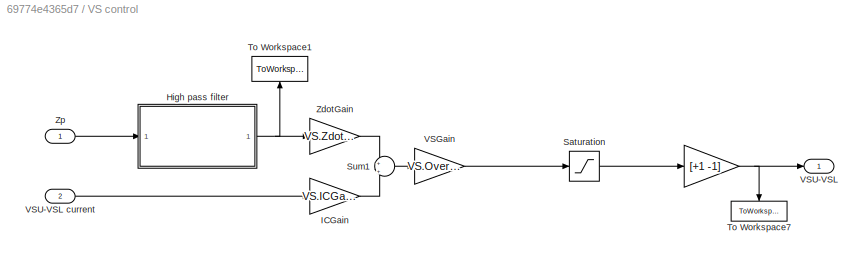
BLOCK [SubSystem] VS control
  Ports = [2, 1]
  RequestExecContextInheritance = off
  Variant = off
BLOCK [Gain] VS control/    
  Gain = [+1 -1]
  OutDataTypeStr = Inherit: Inherit via internal rule
  ParamDataTypeStr = Inherit: Inherit via internal rule
  SaturateOnIntegerOverflow = off
BLOCK [SubSystem] VS control/High pass filter
  Ports = [1, 1]
  RequestExecContextInheritance = off
  Variant = off
BLOCK [Inport] VS control/High pass filter/In1
  IconDisplay = Port number
BLOCK [Outport] VS control/High pass filter/Out1
  IconDisplay = Port number
BLOCK [Reference] VS control/High pass filter/input derivative filter  REF=cstblocks/LTI System
  Ports = [1, 1]
  SourceBlock = cstblocks/LTI System
  SourceType = LTI Block
BLOCK [Gain] VS control/ICGain
  Gain = VS.ICGain
  OutDataTypeStr = Inherit: Inherit via internal rule
  ParamDataTypeStr = Inherit: Inherit via internal rule
  SaturateOnIntegerOverflow = off
BLOCK [Saturate] VS control/Saturation
  InputPortMap = u0
  LowerLimit = -1e3
  Ports = [1, 1]
  UpperLimit = 1e3
BLOCK [Sum] VS control/Sum1
  IconShape = round
  InputSameDT = off
  Inputs = +|+
  OutDataTypeStr = Inherit: Inherit via internal rule
  Ports = [2, 1]
  SaturateOnIntegerOverflow = off
BLOCK [ToWorkspace] VS control/To Workspace1
  FixptAsFi = on
  MaxDataPoints = inf
  Ports = [1]
  SampleTime = -1
  Save2DSignal = 3-D array (concatenate along third dimension)
  SaveFormat = Structure With Time
  VariableName = simZdot
BLOCK [ToWorkspace] VS control/To Workspace7
  FixptAsFi = on
  MaxDataPoints = inf
  Ports = [1]
  SampleTime = -1
  Save2DSignal = 3-D array (concatenate along third dimension)
  SaveFormat = Structure With Time
  VariableName = simVC
BLOCK [Gain] VS control/VSGain
  Gain = VS.OverallGain
  OutDataTypeStr = Inherit: Inherit via internal rule
  ParamDataTypeStr = Inherit: Inherit via internal rule
  SaturateOnIntegerOverflow = off
BLOCK [Outport] VS control/VSU-VSL
  IconDisplay = Port number
BLOCK [Inport] VS control/VSU-VSL current
  IconDisplay = Port number
  Port = 2
BLOCK [Gain] VS control/ZdotGain
  Gain = VS.ZdotGain
  OutDataTypeStr = Inherit: Inherit via internal rule
  ParamDataTypeStr = Inherit: Inherit via internal rule
  SaturateOnIntegerOverflow = off
BLOCK [Inport] VS control/Zp
  IconDisplay = Port number
BLOCK [FromWorkspace] betap
  OutputAfterFinalValue = Holding final value
  SampleTime = 0
  VariableName = betap
  ZeroCross = on
BLOCK [Gain] foo
  Multiplication = Matrix(K*u)
  OutDataTypeStr = Inherit: Inherit via internal rule
  ParamDataTypeStr = Inherit: Inherit via internal rule
  SaturateOnIntegerOverflow = off
BLOCK [FromWorkspace] li
  OutputAfterFinalValue = Holding final value
  SampleTime = 0
  VariableName = li
  ZeroCross = on
LINE Constant3:1 -> Mux3:3
LINE Gap_ref:1 -> Sum4:2
LINE IC power supply/LTI System:1 -> IC power supply/Transport Delay:1
LINE IC power supply/Saturation:1 -> IC power supply/LTI System:1
LINE IC power supply/Transport Delay:1 -> IC power supply/V:1
LINE IC power supply/Vreq:1 -> IC power supply/Saturation:1
LINE IC power supply:1 -> Mux3:2
LINE I_scenario:1 -> Sum1:3
LINE Imbalance FPPC current/    1:1 -> Imbalance FPPC current/Imbalance current:1
LINE Imbalance FPPC current/Demux1:1 -> Imbalance FPPC current/Sum:1
LINE Imbalance FPPC current/Demux1:2 -> Imbalance FPPC current/Sum:2
LINE Imbalance FPPC current/Sum:1 -> Imbalance FPPC current/    1:1
LINE Imbalance FPPC current/VSU-VSL:1 -> Imbalance FPPC current/Demux1:1
LINE Imbalance FPPC current:1 -> VS control:2
LINE Ip controller/Ip PID:1 -> Ip controller/kIp:1
LINE Ip controller/Iperr:1 -> Ip controller/Ip PID:1
LINE Ip controller/kIp:1 -> Ip controller/deltaIPF:1
LINE Ip controller:1 -> Sum1:2
LINE Ip_ref:1 -> foo:1
LINE JT-60SA linearized model/Demux1:1 -> JT-60SA linearized model/Saturation:1
LINE JT-60SA linearized model/Demux1:2 -> JT-60SA linearized model/ISU-ISL:1
LINE JT-60SA linearized model/Demux1:3 -> JT-60SA linearized model/Ip:1
LINE JT-60SA linearized model/Demux1:4 -> JT-60SA linearized model/Gaps:1
LINE JT-60SA linearized model/Demux1:5 -> JT-60SA linearized model/Strikes:1
LINE JT-60SA linearized model/Demux1:6 -> JT-60SA linearized model/Rx:1
LINE JT-60SA linearized model/Demux1:7 -> JT-60SA linearized model/Zx:1
LINE JT-60SA linearized model/Demux1:8 -> JT-60SA linearized model/Zc:1
LINE JT-60SA linearized model/Gain:1 -> JT-60SA linearized model/Mux:2
LINE JT-60SA linearized model/Mux1:1 -> JT-60SA linearized model/Sum2:1
LINE JT-60SA linearized model/Mux:1 -> JT-60SA linearized model/State-Space:1
LINE JT-60SA linearized model/Saturation:1 -> JT-60SA linearized model/PFC:1
NET JT-60SA linearized model/State-Space:1 -> JT-60SA linearized model/Sum:1, JT-60SA linearized model/To Workspace1:1
LINE JT-60SA linearized model/Sum2:1 -> JT-60SA linearized model/Gain:1
LINE JT-60SA linearized model/Sum3:1 -> JT-60SA linearized model/Mux:1
LINE JT-60SA linearized model/Sum:1 -> JT-60SA linearized model/Demux1:1
LINE JT-60SA linearized model/VPF:1 -> JT-60SA linearized model/Sum3:2
LINE JT-60SA linearized model/betap*Ip:1 -> JT-60SA linearized model/Mux1:1
LINE JT-60SA linearized model/equilibrium disturbances:1 -> JT-60SA linearized model/Sum2:2
LINE JT-60SA linearized model/equilibrium outputs:1 -> JT-60SA linearized model/Sum:2
LINE JT-60SA linearized model/equilibrium voltages:1 -> JT-60SA linearized model/Sum3:1
LINE JT-60SA linearized model/li*Ip:1 -> JT-60SA linearized model/Mux1:2
NET JT-60SA linearized model:1 -> Sum:2, To Workspace1:1
LINE JT-60SA linearized model:2 -> Imbalance FPPC current:1
NET JT-60SA linearized model:3 -> Sum2:2, To Workspace4:1
NET JT-60SA linearized model:4 -> MATLAB Function:1, To Workspace6:1
LINE JT-60SA linearized model:5 -> To Workspace2:1
LINE JT-60SA linearized model:6 -> To Workspace3:1
LINE JT-60SA linearized model:7 -> To Workspace5:1
LINE JT-60SA linearized model:8 -> VS control:1
LINE MATLAB Function:1 -> Sum4:1
NET Mux3:1 -> JT-60SA linearized model:1, To Workspace7:1
LINE PF power supply/LTI System:1 -> PF power supply/Transport Delay:1
LINE PF power supply/Saturation:1 -> PF power supply/LTI System:1
LINE PF power supply/Transport Delay:1 -> PF power supply/V:1
LINE PF power supply/Vreq:1 -> PF power supply/Saturation:1
LINE PF power supply:1 -> Mux3:1
LINE PFC controller/KPFcurr:1 -> PFC controller/Vreq:1
LINE PFC controller/PFCerr:1 -> PFC controller/KPFcurr:1
LINE PFC controller:1 -> PF power supply:1
LINE Plasma shape controller (XSC)/Ip PID:1 -> Plasma shape controller (XSC)/deltaIPF:1
LINE Plasma shape controller (XSC)/Shape Error:1 -> Plasma shape controller (XSC)/XSC matrix:1
LINE Plasma shape controller (XSC)/XSC matrix:1 -> Plasma shape controller (XSC)/Ip PID:1
LINE Plasma shape controller (XSC):1 -> Sum1:1
LINE Saturation:1 -> Sum:1
LINE Sum1:1 -> Saturation:1
LINE Sum2:1 -> Ip controller:1
LINE Sum3:1 -> Sum2:1
LINE Sum4:1 -> Plasma shape controller (XSC):1
LINE Sum:1 -> PFC controller:1
NET VS control/    :1 -> VS control/To Workspace7:1, VS control/VSU-VSL:1
LINE VS control/High pass filter/In1:1 -> VS control/High pass filter/input derivative filter:1
LINE VS control/High pass filter/input derivative filter:1 -> VS control/High pass filter/Out1:1
NET VS control/High pass filter:1 -> VS control/To Workspace1:1, VS control/ZdotGain:1
LINE VS control/ICGain:1 -> VS control/Sum1:2
LINE VS control/Saturation:1 -> VS control/    :1
LINE VS control/Sum1:1 -> VS control/VSGain:1
LINE VS control/VSGain:1 -> VS control/Saturation:1
LINE VS control/VSU-VSL current:1 -> VS control/ICGain:1
LINE VS control/ZdotGain:1 -> VS control/Sum1:1
LINE VS control/Zp:1 -> VS control/High pass filter:1
LINE VS control:1 -> IC power supply:1
LINE betap:1 -> JT-60SA linearized model:2
LINE foo:1 -> Sum3:1
LINE li:1 -> JT-60SA linearized model:3
note: NET lines group one-source signal fan-out (src -> all destinations, sorted); 1:1 wires keep LINE
CHART MATLAB Function states=1 transitions=1
  STATE_LABEL 'eML_blk_kernel()'
  STATE_LABEL "SCRIPT:\nfunction y = fcn(u)\n%#codegen\n% % % %%all gaps\n% y=u(1:end);\n\n% %%30 gaps\n%  y=u([1:3:(end-2),end-1,end]);\n    \n% %%19 gaps\n%  y=u([1:5:(end-2),end-1,end]);\n\n%20 gaps\n y=u([round((1+1:4.6:(end-2))),end-1,end]);\n\n% % % Japanese selection1\n% japs_gaps=[13,22,36,52,66,76,84,85  ]';\n%  y=u(japs_gaps);\n% % % % % % \n% % % %Japanese selection 2\n%  japs_gaps=[21,36,47,66,84,85]';\n% y=u(japs_gaps);...<+6ch>"
